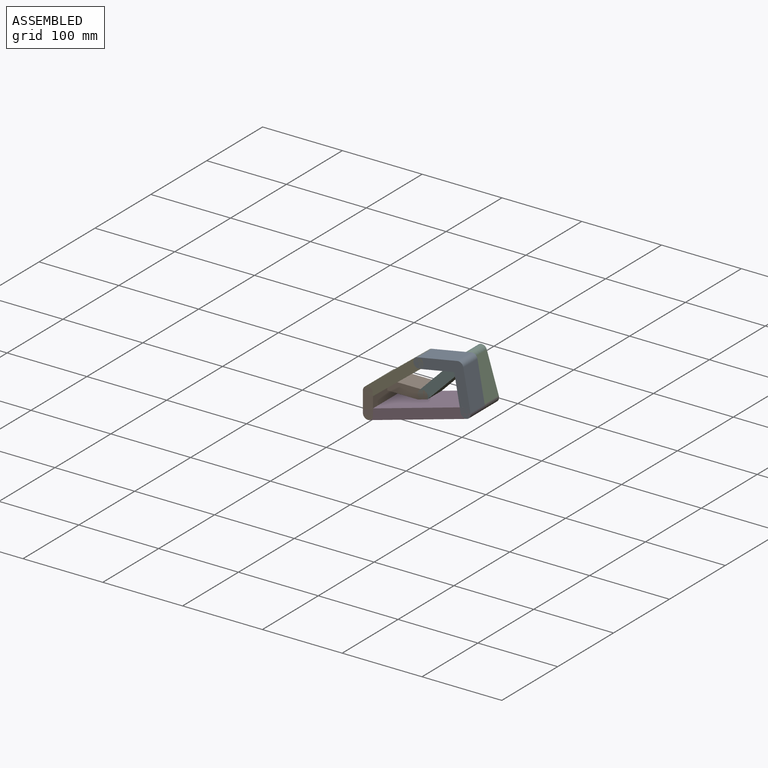
[diagram: assembled view]
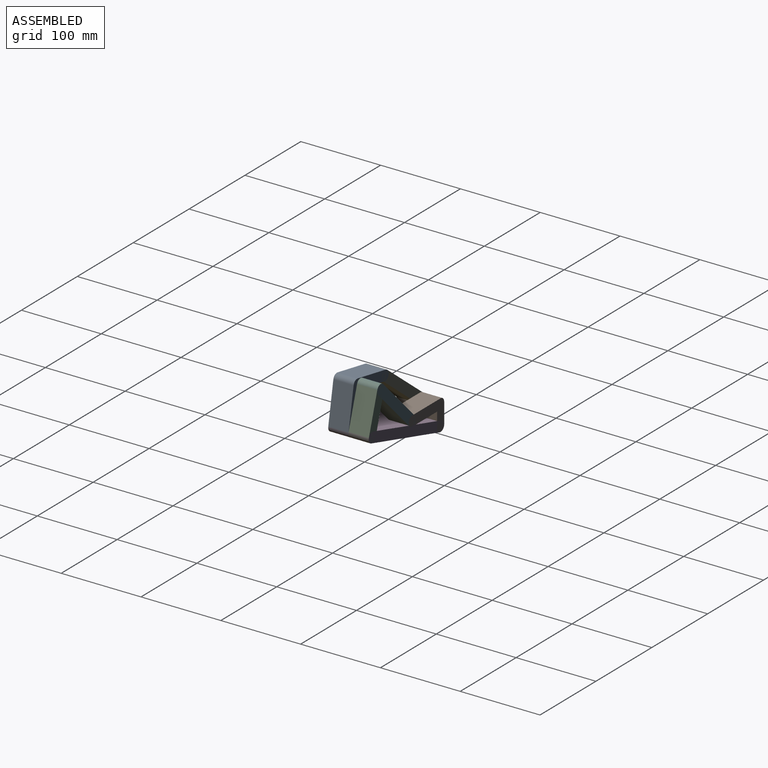
[diagram: assembled view, second angle]
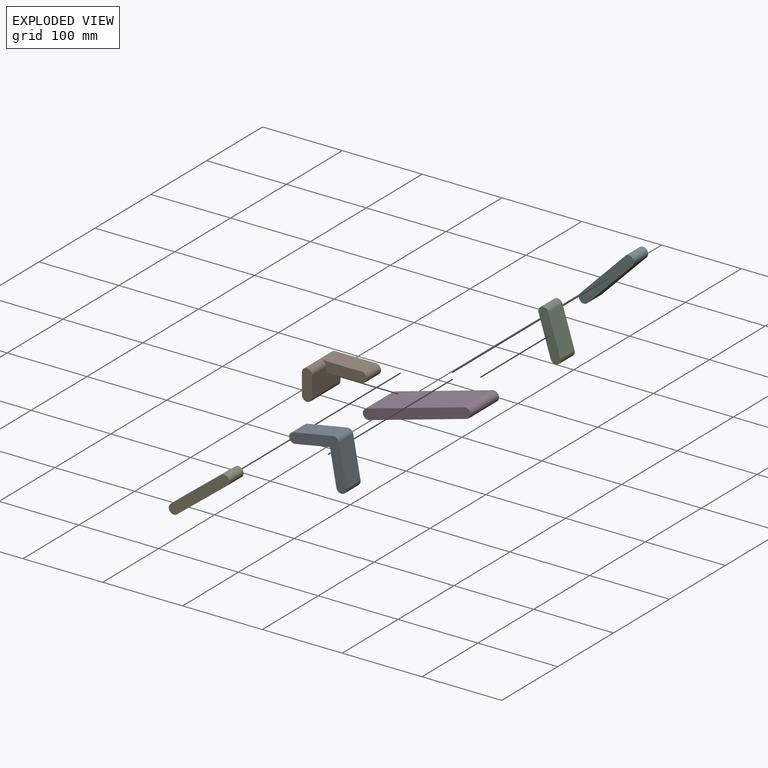
[diagram: exploded view]
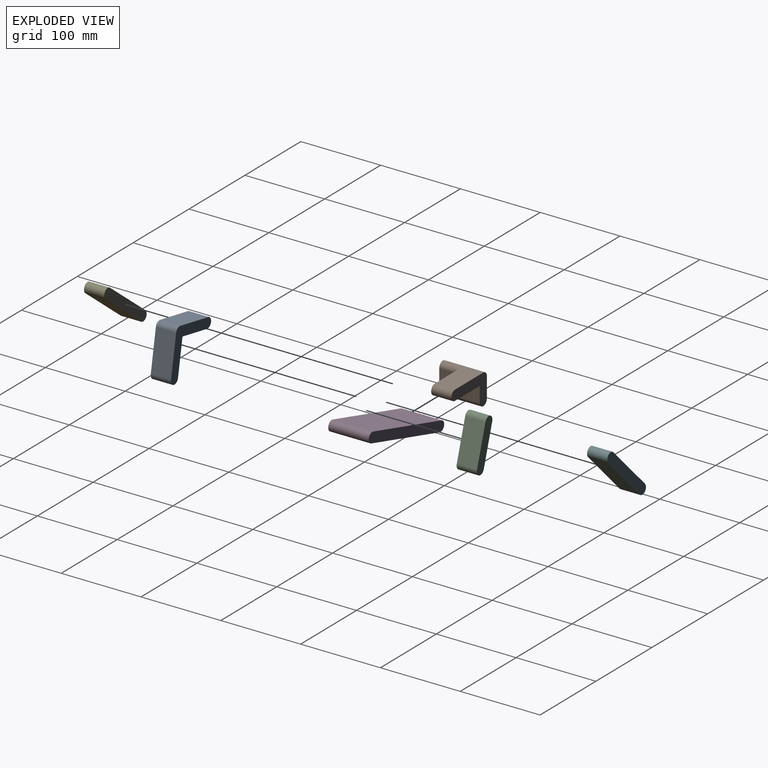
[diagram: exploded view, second angle]
ASSEMBLY  parts=6 mates=7
PART A: 9 faces, bbox 63.5x25.4x63.5 mm
  f0: cylinder r=6.35mm len=25.4mm, axis (0,1,0), area 506.7mm2, adj f1,f6,f7,f8
  f1: plane 50.8x25.4mm, normal (1,0,0), area 1290.3mm2, adj f0,f2,f7,f8
  f2: cylinder r=6.35mm len=25.4mm, axis (0,1,0), area 253.4mm2, adj f1,f3,f7,f8
  f3: plane 50.8x25.4mm, normal (0,0,1), area 1290.3mm2, adj f2,f4,f7,f8
  f4: cylinder r=6.35mm len=25.4mm, axis (0,1,0), area 506.7mm2, adj f3,f5,f7,f8
  f5: plane 44.45x25.4mm, normal (0,0,-1), area 1129mm2, adj f4,f6,f7,f8
  f6: plane 44.45x25.4mm, normal (-1,0,0), area 1129mm2, adj f0,f5,f7,f8
  f7: plane 63.5x63.5mm, normal (0,-1,0), area 1408.3mm2, adj f0,f1,f2,f3,f4,f5,f6
  f8: plane 63.5x63.5mm, normal (0,1,0), area 1408.3mm2, adj f0,f1,f2,f3,f4,f5,f6
PART B: 10 faces, bbox 63.5x50.8x38.1 mm
  f0: plane 50.8x25.4mm, normal (1,0,0), area 1129mm2, adj f1,f3,f4,f5,f6,f9
  f1: cylinder r=6.35mm len=50.8mm, axis (0,1,0), area 760.1mm2, adj f0,f2,f4,f5,f8,f9
  f2: plane 50.8x25.4mm, normal (-1,0,0), area 1290.3mm2, adj f1,f3,f4,f9
  f3: cylinder r=6.35mm len=50.8mm, axis (0,1,0), area 1013.4mm2, adj f0,f2,f4,f9
  f4: plane 38.1x12.7mm, normal (0,-1,0), area 449.3mm2, adj f0,f1,f2,f3
  f5: plane 57.15x12.7mm, normal (0,-1,0), area 636.5mm2, adj f0,f1,f6,f7,f8
  f6: plane 44.45x25.4mm, normal (0,0,-1), area 1129mm2, adj f0,f5,f7,f9
  f7: cylinder r=6.35mm len=25.4mm, axis (0,-1,0), area 506.7mm2, adj f5,f6,f8,f9
  f8: plane 50.8x25.4mm, normal (0,0,1), area 1290.3mm2, adj f1,f5,f7,f9
  f9: plane 63.5x38.1mm, normal (0,1,0), area 1085.8mm2, adj f0,f1,f2,f3,f6,f7,f8
PART C: 6 faces, bbox 12.7x25.4x63.5 mm
  f0: plane 50.8x25.4mm, normal (1,0,0), area 1290.3mm2, adj f1,f3,f4,f5
  f1: cylinder r=6.35mm len=25.4mm, axis (0,-1,0), area 506.7mm2, adj f0,f2,f4,f5
  f2: plane 50.8x25.4mm, normal (-1,0,0), area 1290.3mm2, adj f1,f3,f4,f5
  f3: cylinder r=6.35mm len=25.4mm, axis (0,-1,0), area 506.7mm2, adj f0,f2,f4,f5
  f4: plane 63.5x12.7mm, normal (0,1,0), area 771.8mm2, adj f0,f1,f2,f3
  f5: plane 63.5x12.7mm, normal (0,-1,0), area 771.8mm2, adj f0,f1,f2,f3
PART D: 6 faces, bbox 139.7x50.8x12.7 mm
  f0: plane 127x50.8mm, normal (0,0,1), area 6451.6mm2, adj f1,f3,f4,f5
  f1: cylinder r=6.35mm len=50.8mm, axis (0,1,0), area 1013.4mm2, adj f0,f2,f4,f5
  f2: plane 127x50.8mm, normal (0,0,-1), area 6451.6mm2, adj f1,f3,f4,f5
  f3: cylinder r=6.35mm len=50.8mm, axis (0,1,0), area 1013.4mm2, adj f0,f2,f4,f5
  f4: plane 139.7x12.7mm, normal (0,-1,0), area 1739.6mm2, adj f0,f1,f2,f3
  f5: plane 139.7x12.7mm, normal (0,1,0), area 1739.6mm2, adj f0,f1,f2,f3
PART E: 6 faces, bbox 88.9x25.4x38.1 mm
  f0: plane 76.2x25.4mm, normal (-0.32,0,0.95), area 2040.2mm2, adj f1,f3,f4,f5
  f1: cylinder r=6.35mm len=25.4mm, axis (0,1,0), area 506.7mm2, adj f0,f2,f4,f5
  f2: plane 76.2x25.4mm, normal (0.32,0,-0.95), area 2040.2mm2, adj f1,f3,f4,f5
  f3: cylinder r=6.35mm len=25.4mm, axis (0,1,0), area 506.7mm2, adj f0,f2,f4,f5
  f4: plane 88.9x38.1mm, normal (0,-1,0), area 1146.8mm2, adj f0,f1,f2,f3
  f5: plane 88.9x38.1mm, normal (0,1,0), area 1146.8mm2, adj f0,f1,f2,f3
PART F: 6 faces, bbox 88.9x25.4x38.1 mm
  f0: plane 76.2x25.4mm, normal (-0.32,0,0.95), area 2040.2mm2, adj f1,f3,f4,f5
  f1: cylinder r=6.35mm len=25.4mm, axis (0,-1,0), area 506.7mm2, adj f0,f2,f4,f5
  f2: plane 76.2x25.4mm, normal (0.32,0,-0.95), area 2040.2mm2, adj f1,f3,f4,f5
  f3: cylinder r=6.35mm len=25.4mm, axis (0,-1,0), area 506.7mm2, adj f0,f2,f4,f5
  f4: plane 88.9x38.1mm, normal (0,1,0), area 1146.8mm2, adj f0,f1,f2,f3
  f5: plane 88.9x38.1mm, normal (0,-1,0), area 1146.8mm2, adj f0,f1,f2,f3
PLACE A rot(axis=(0,-1,0),10.4deg) t=(-2.59,0,11.25)mm
PLACE B at identity fixed
PLACE C rot(axis=(0,-1,0),17.3deg) t=(1.1,0,-3.74)mm
PLACE D rot(axis=(0,-1,0),15.6deg) t=(0,0,0)mm
PLACE E rot(axis=(0,-1,0),19.6deg) t=(8.53,0,1.48)mm
PLACE F rot(axis=(0,-1,0),26.9deg) t=(17.03,0,-20.26)mm
MATE revolute E.f1 <-> B.f1  axis (0,-1,0) through (0,-25.4,25.4)mm
MATE revolute C.f1 <-> F.f3  axis (0,1,0) through (107.22,25.4,82.57)mm
MATE revolute A.f4 <-> E.f3  axis (0,-1,0) through (63.24,-25.4,74.92)mm
MATE revolute B.f7 <-> F.f1  axis (0,1,0) through (50.8,25.4,25.4)mm
MATE revolute D.f3 <-> A.f0  axis (0,-1,0) through (122.34,-25.4,34.08)mm
MATE revolute B.f3 <-> D.f1  axis (0,-1,0) through (0,-25.4,0)mm
MATE revolute D.f3 <-> C.f3  axis (0,1,0) through (122.34,25.4,34.08)mm
